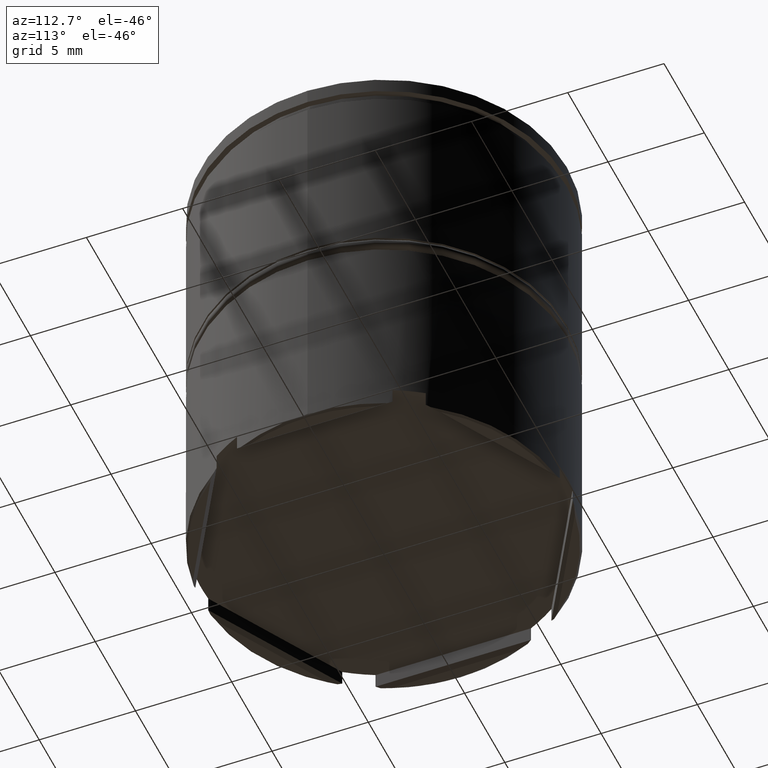
[diagram: clean part render]
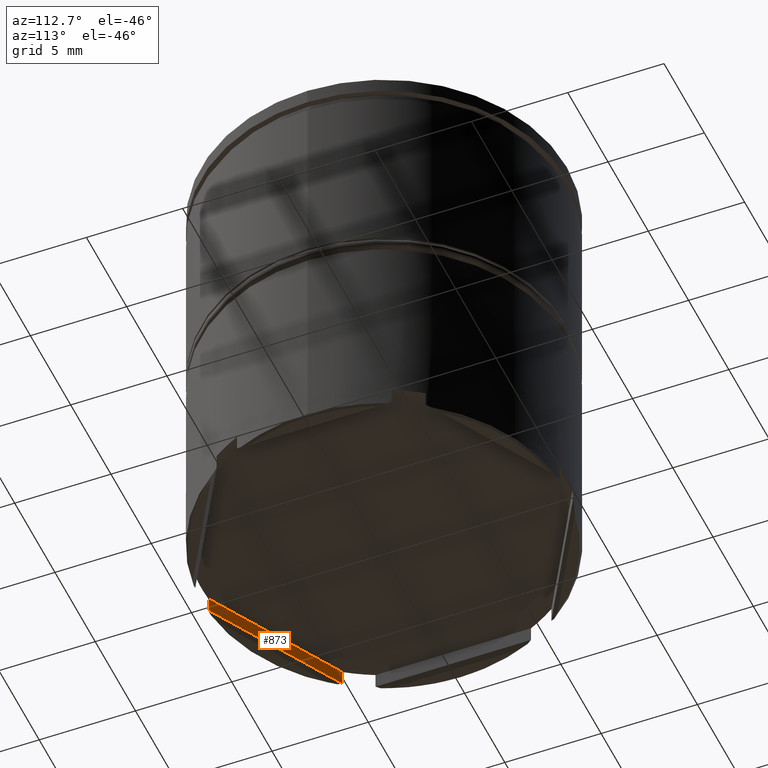
[diagram: same view with one face highlighted and labeled with its STEP entity id]
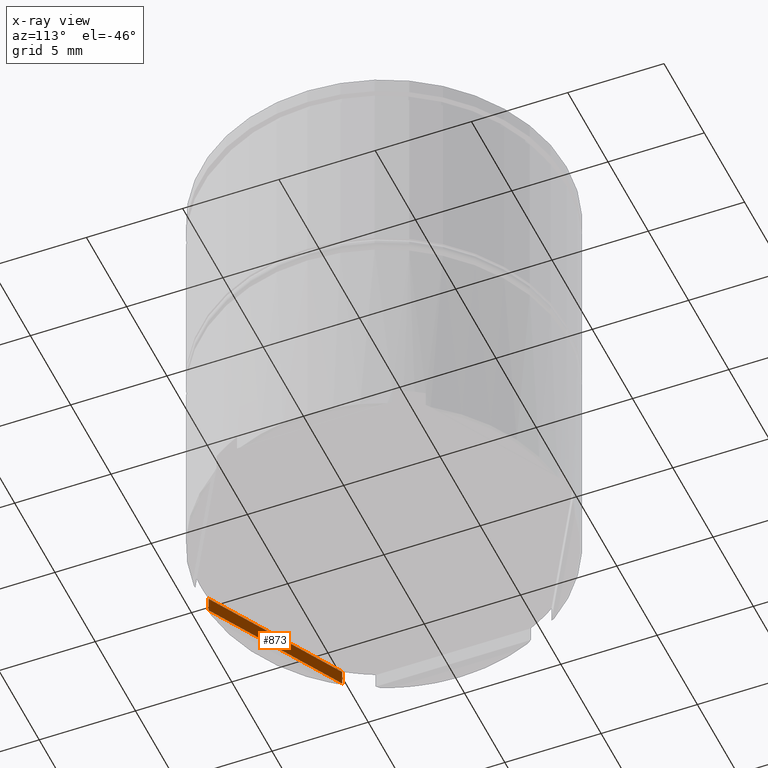
[diagram: x-ray of the same camera — body ghosted, the highlighted face saturated]
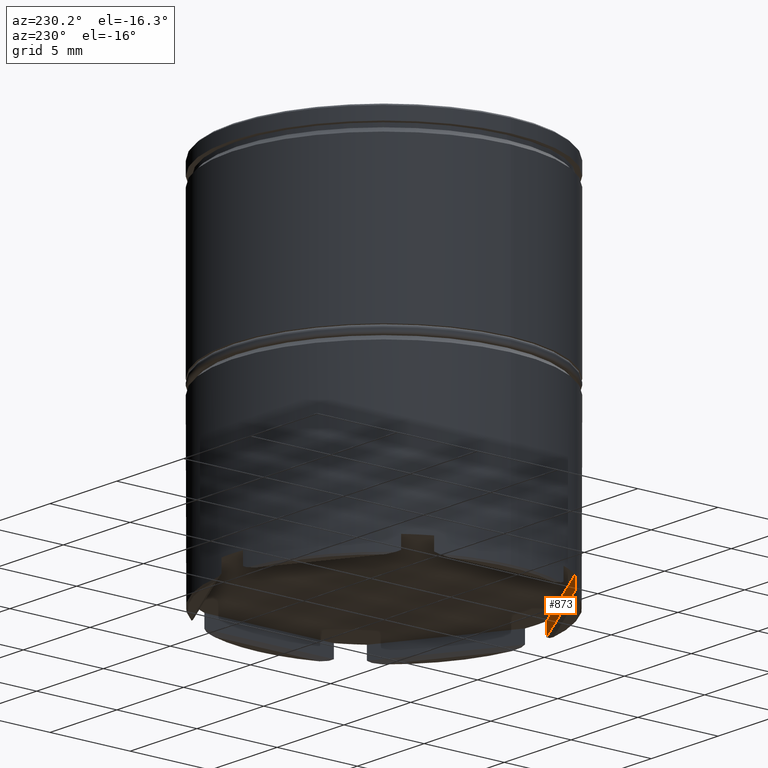
[diagram: same view with one face highlighted and labeled with its STEP entity id]
A machine part, auxiliary view. The second image highlights one B-rep face of the part: STEP entity #873.
The next image is the same camera in x-ray: the body ghosted, the highlighted face saturated — about 0% of this face is hidden behind the body in this view.
A second angle (auxiliary view) of the same face is appended — the face is thin or edge-on in the first view.
In plain terms, the highlighted planar face has unit normal (-0.5, -0.866, 0).
Its self-contained STEP definition (entity closure, byte-faithful):
#18 = VECTOR ( 'NONE', #1176, 1000.000000000000000 ) ;
#134 = PLANE ( 'NONE',  #639 ) ;
#156 = ORIENTED_EDGE ( 'NONE', *, *, #592, .T. ) ;
#174 = CARTESIAN_POINT ( 'NONE',  ( -7.795354059319314466, -5.429774865485112123, -22.29999999999999716 ) ) ;
#274 = EDGE_LOOP ( 'NONE', ( #832, #696, #156, #1340 ) ) ;
#328 = LINE ( 'NONE', #614, #898 ) ;
#369 = DIRECTION ( 'NONE',  ( 0.8660254037844385966, -0.5000000000000000000, 0.000000000000000000 ) ) ;
#382 = DIRECTION ( 'NONE',  ( -0.5000000000000001110, -0.8660254037844387076, 0.000000000000000000 ) ) ;
#453 = VERTEX_POINT ( 'NONE', #174 ) ;
#530 = CARTESIAN_POINT ( 'NONE',  ( -0.8046459406806840686, -9.465862079607228807, 0.000000000000000000 ) ) ;
#563 = LINE ( 'NONE', #1094, #1031 ) ;
#592 = EDGE_CURVE ( 'NONE', #453, #981, #328, .T. ) ;
#614 = CARTESIAN_POINT ( 'NONE',  ( -7.795354059319314466, -5.429774865485112123, 0.000000000000000000 ) ) ;
#620 = CARTESIAN_POINT ( 'NONE',  ( -8.646952822150503169E-16, -9.930424630061562397, -21.50000000000000000 ) ) ;
#639 = AXIS2_PLACEMENT_3D ( 'NONE', #620, #382, #369 ) ;
#679 = LINE ( 'NONE', #530, #18 ) ;
#696 = ORIENTED_EDGE ( 'NONE', *, *, #1100, .T. ) ;
#713 = EDGE_CURVE ( 'NONE', #1410, #981, #1279, .T. ) ;
#725 = DIRECTION ( 'NONE',  ( -0.000000000000000000, -0.000000000000000000, 1.000000000000000000 ) ) ;
#793 = VERTEX_POINT ( 'NONE', #1066 ) ;
#832 = ORIENTED_EDGE ( 'NONE', *, *, #1621, .T. ) ;
#865 = CARTESIAN_POINT ( 'NONE',  ( -7.795354059319314466, -5.429774865485112123, -21.50000000000000000 ) ) ;
#873 = ADVANCED_FACE ( 'NONE', ( #1332 ), #134, .F. ) ;
#877 = CARTESIAN_POINT ( 'NONE',  ( -8.646952822150503169E-16, -9.930424630061562397, -21.50000000000000000 ) ) ;
#898 = VECTOR ( 'NONE', #725, 1000.000000000000000 ) ;
#981 = VERTEX_POINT ( 'NONE', #865 ) ;
#1027 = DIRECTION ( 'NONE',  ( -0.8660254037844385966, 0.5000000000000000000, 0.000000000000000000 ) ) ;
#1031 = VECTOR ( 'NONE', #1588, 999.9999999999998863 ) ;
#1066 = CARTESIAN_POINT ( 'NONE',  ( -0.8046459406806840686, -9.465862079607228807, -22.29999999999999716 ) ) ;
#1094 = CARTESIAN_POINT ( 'NONE',  ( -7.586335345030999378, -5.550451876445142929, -22.29999999999999716 ) ) ;
#1100 = EDGE_CURVE ( 'NONE', #793, #453, #563, .T. ) ;
#1176 = DIRECTION ( 'NONE',  ( 0.000000000000000000, 0.000000000000000000, -1.000000000000000000 ) ) ;
#1279 = LINE ( 'NONE', #877, #1538 ) ;
#1332 = FACE_OUTER_BOUND ( 'NONE', #274, .T. ) ;
#1340 = ORIENTED_EDGE ( 'NONE', *, *, #713, .F. ) ;
#1410 = VERTEX_POINT ( 'NONE', #1591 ) ;
#1538 = VECTOR ( 'NONE', #1027, 1000.000000000000227 ) ;
#1588 = DIRECTION ( 'NONE',  ( -0.8660254037844387076, 0.5000000000000001110, 0.000000000000000000 ) ) ;
#1591 = CARTESIAN_POINT ( 'NONE',  ( -0.8046459406806840686, -9.465862079607228807, -21.50000000000000000 ) ) ;
#1621 = EDGE_CURVE ( 'NONE', #1410, #793, #679, .T. ) ;